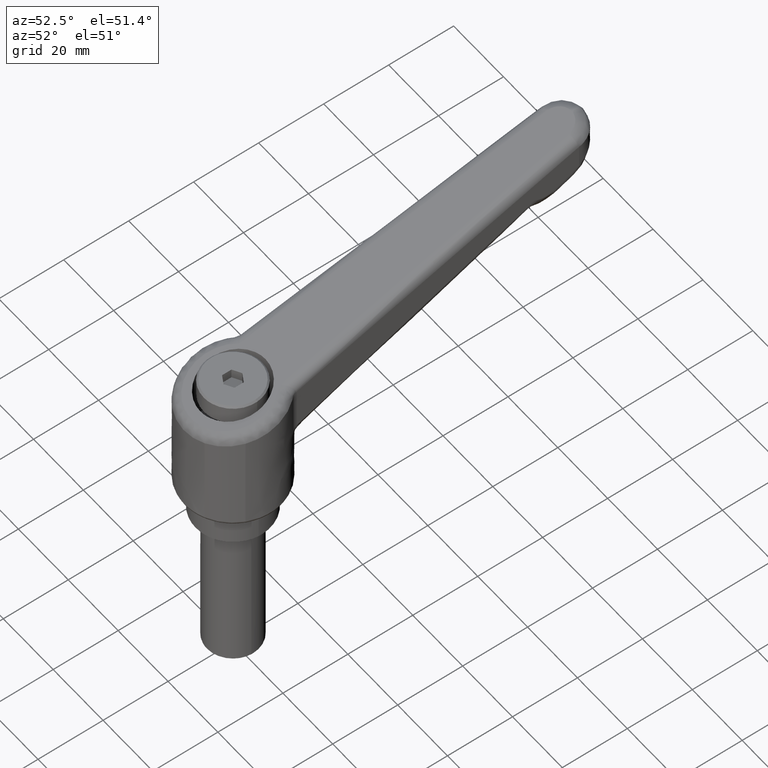
[diagram: clean part render]
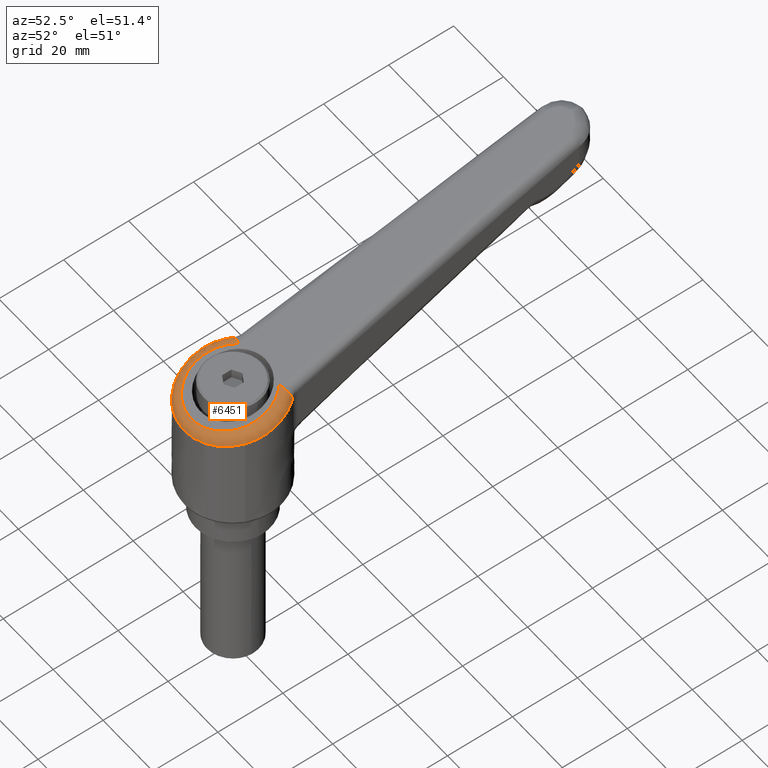
[diagram: same view with one face highlighted and labeled with its STEP entity id]
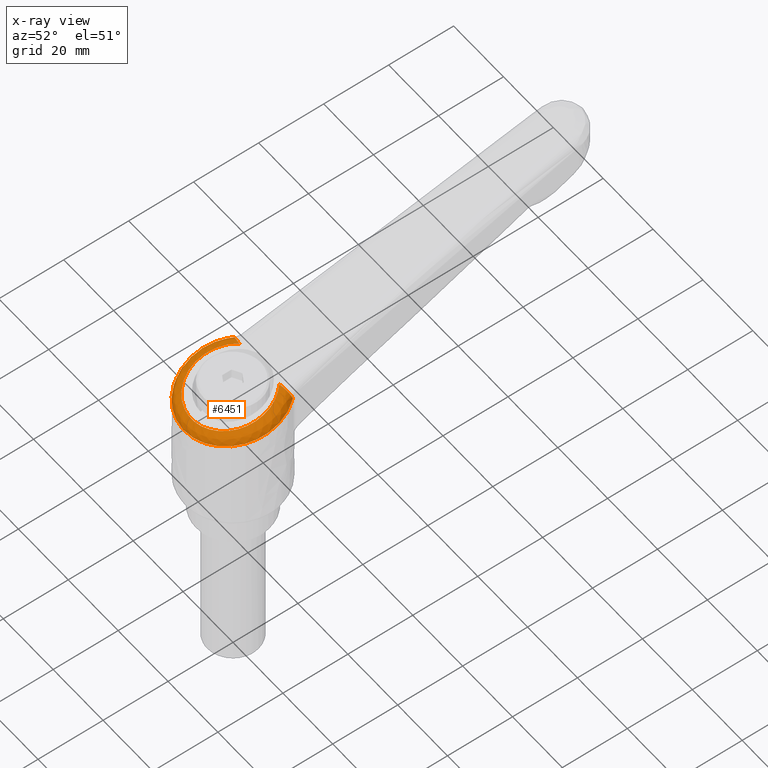
[diagram: x-ray of the same camera — body ghosted, the highlighted face saturated]
A machine part, auxiliary view. The second image highlights one B-rep face of the part: STEP entity #6451.
The next image is the same camera in x-ray: the body ghosted, the highlighted face saturated — about 0% of this face is hidden behind the body in this view.
In plain terms, the highlighted face is a freeform B-spline surface patch.
Its self-contained STEP definition (entity closure, byte-faithful):
#2017=CARTESIAN_POINT('',(-13.591118296123440,-6.346771105100308,41.912158465186323));
#2018=VERTEX_POINT('',#2017);
#2024=CARTESIAN_POINT('',(9.472244752128422,11.630846029235180,46.862331811850687));
#2025=VERTEX_POINT('',#2024);
#2026=CARTESIAN_POINT('',(-13.591118296123438,-6.346771105100308,41.912158465186323));
#2027=CARTESIAN_POINT('',(-17.878908185706003,2.835196582448638,40.991851073208743));
#2028=CARTESIAN_POINT('',(-10.960801264136990,10.240158969460049,42.476708919969923));
#2029=CARTESIAN_POINT('',(-1.393905066633530,20.480316762061573,44.530085811807695));
#2030=CARTESIAN_POINT('',(9.472244752128422,11.630846029235180,46.862331811850687));
#2038=(BOUNDED_CURVE()B_SPLINE_CURVE(2,(#2026,#2027,#2028,#2029,#2030),.UNSPECIFIED.,.F.,.U.)B_SPLINE_CURVE_WITH_KNOTS((3,2,3),(0.406204512863110,0.666666666666667,1.0),.UNSPECIFIED.)CURVE()GEOMETRIC_REPRESENTATION_ITEM()RATIONAL_B_SPLINE_CURVE((0.908002308991056,0.789588303627976,1.0,0.730720063933333,1.0))REPRESENTATION_ITEM(''));
#2039=EDGE_CURVE('',#2018,#2025,#2038,.T.);
#2184=CARTESIAN_POINT('',(9.472244752128422,-11.630846029235180,46.862331811850687));
#2185=VERTEX_POINT('',#2184);
#2191=CARTESIAN_POINT('',(-6.495377530397809,-13.520727448520329,43.435143650820500));
#2192=VERTEX_POINT('',#2191);
#2193=CARTESIAN_POINT('',(9.472244752128422,-11.630846029235180,46.862331811850687));
#2194=CARTESIAN_POINT('',(2.088334876930437,-17.644354313859541,45.277497055466206));
#2195=CARTESIAN_POINT('',(-6.495377530397809,-13.520727448520333,43.435143650820500));
#2203=(BOUNDED_CURVE()B_SPLINE_CURVE(2,(#2193,#2194,#2195),.UNSPECIFIED.,.F.,.U.)B_SPLINE_CURVE_WITH_KNOTS((3,3),(0.0,0.247903999850875),.UNSPECIFIED.)CURVE()GEOMETRIC_REPRESENTATION_ITEM()RATIONAL_B_SPLINE_CURVE((1.0,0.799733280308456,0.897348085708199))REPRESENTATION_ITEM(''));
#2204=EDGE_CURVE('',#2185,#2192,#2203,.T.);
#2310=CARTESIAN_POINT('',(-6.495377530397809,-13.520727448520333,43.435143650820500));
#2311=CARTESIAN_POINT('',(-9.036351409407056,-12.300039986753522,42.889764658598473));
#2312=CARTESIAN_POINT('',(-10.960802006790541,-10.240157344158190,42.476712710107627));
#2313=CARTESIAN_POINT('',(-12.584662193443480,-8.502018980390432,42.128177593079613));
#2314=CARTESIAN_POINT('',(-13.591118296123438,-6.346771105100308,41.912158465186323));
#2322=(BOUNDED_CURVE()B_SPLINE_CURVE(2,(#2310,#2311,#2312,#2313,#2314),.UNSPECIFIED.,.F.,.U.)B_SPLINE_CURVE_WITH_KNOTS((3,2,3),(0.247903999850875,0.333333333333333,0.406204512863110),.UNSPECIFIED.)CURVE()GEOMETRIC_REPRESENTATION_ITEM()RATIONAL_B_SPLINE_CURVE((0.897348085708199,0.930986783624877,1.0,0.941131760305357,0.908002308991056))REPRESENTATION_ITEM(''));
#2323=EDGE_CURVE('',#2192,#2018,#2322,.T.);
#4320=CARTESIAN_POINT('',(9.436880644166740,11.613387995143960,47.329988022554907));
#4321=VERTEX_POINT('',#4320);
#4345=CARTESIAN_POINT('',(9.436880644166740,11.613387995143960,47.329988022554907));
#4346=CARTESIAN_POINT('',(9.477869287583793,11.611592745896440,47.176026505749007));
#4347=CARTESIAN_POINT('',(9.488280105674333,11.617786721847560,47.020050942452023));
#4348=CARTESIAN_POINT('',(9.472244752128411,11.630846029235180,46.862331811850687));
#4349=QUASI_UNIFORM_CURVE('',3,(#4345,#4346,#4347,#4348),.UNSPECIFIED.,.F.,.U.);
#4350=EDGE_CURVE('',#4321,#2025,#4349,.T.);
#4429=CARTESIAN_POINT('',(8.123781733177820,8.047932275665861,50.114911370818703));
#4430=VERTEX_POINT('',#4429);
#4431=CARTESIAN_POINT('',(8.123781733177840,8.047932275665840,50.114911370818703));
#4432=CARTESIAN_POINT('',(8.127179443681980,8.074889399582524,50.115822951999462));
#4433=CARTESIAN_POINT('',(8.130689640095229,8.102222775426549,50.116534091348008));
#4434=CARTESIAN_POINT('',(8.137849442063269,8.156711782452392,50.117518863517788));
#4435=CARTESIAN_POINT('',(8.148805319810325,8.238358149036790,50.118346406060517));
#4436=CARTESIAN_POINT('',(8.160411580459295,8.319741332068540,50.117206883093168));
#4437=CARTESIAN_POINT('',(8.184498469513361,8.482150984741972,50.112246886975548));
#4438=CARTESIAN_POINT('',(8.201721181041277,8.589948978222981,50.105369889761242));
#4439=CARTESIAN_POINT('',(8.238556713171795,8.804552782637749,50.084071991929299));
#4440=CARTESIAN_POINT('',(8.258169135835129,8.911358778087191,50.069652590838700));
#4441=CARTESIAN_POINT('',(8.289453729663768,9.070778507359602,50.041949132632581));
#4442=CARTESIAN_POINT('',(8.300213079055688,9.123879062044047,50.031679577742842));
#4443=CARTESIAN_POINT('',(8.322243563553521,9.229205160248835,50.009159337203762));
#4444=CARTESIAN_POINT('',(8.333517276575572,9.281451094659078,49.996909492519940));
#4445=CARTESIAN_POINT('',(8.391173172846482,9.540569236903584,49.930635029523678));
#4446=CARTESIAN_POINT('',(8.441390429142180,9.741156106270852,49.861654116790483));
#4447=CARTESIAN_POINT('',(8.509444901785409,9.982644546139262,49.753173662371921));
#4448=CARTESIAN_POINT('',(8.523321733749359,10.030476660426450,49.730356799787401));
#4449=CARTESIAN_POINT('',(8.551619562626147,10.125172943637320,49.682386732410322));
#4450=CARTESIAN_POINT('',(8.566077685106643,10.172151366716500,49.657165468876400));
#4451=CARTESIAN_POINT('',(8.609929380877066,10.310437574234671,49.578486281589711));
#4452=CARTESIAN_POINT('',(8.639826035576514,10.399225017716130,49.521990675803700));
#4453=CARTESIAN_POINT('',(8.731438171257564,10.655169044284170,49.340077338958977));
#4454=CARTESIAN_POINT('',(8.795053038069513,10.812037877983020,49.202389437760132));
#4455=CARTESIAN_POINT('',(8.927504518473008,11.094604044242111,48.889577563327613));
#4456=CARTESIAN_POINT('',(8.993865598059353,11.215011490770671,48.720279060754869));
#4457=CARTESIAN_POINT('',(9.093297584029976,11.363380007064370,48.446356508194157));
#4458=CARTESIAN_POINT('',(9.126425283670624,11.407423613229220,48.351693454045950));
#4459=CARTESIAN_POINT('',(9.192607799628750,11.483935818305950,48.155177088219048));
#4460=CARTESIAN_POINT('',(9.225006040887738,11.515629995901270,48.055262423386672));
#4461=CARTESIAN_POINT('',(9.319798295622261,11.591161044223639,47.751676035427728));
#4462=CARTESIAN_POINT('',(9.379966950537682,11.615880740869310,47.543767203021453));
#4463=CARTESIAN_POINT('',(9.436880644166740,11.613387995143960,47.329988022554907));
#4464=B_SPLINE_CURVE_WITH_KNOTS('',3,(#4431,#4432,#4433,#4434,#4435,#4436,#4437,#4438,#4439,#4440,#4441,#4442,#4443,#4444,#4445,#4446,#4447,#4448,#4449,#4450,#4451,#4452,#4453,#4454,#4455,#4456,#4457,#4458,#4459,#4460,#4461,#4462,#4463),.UNSPECIFIED.,.F.,.U.,(4,2,1,2,2,2,2,2,2,2,2,2,2,2,2,2,4),(0.0,0.015625000000000,0.031250000000000,0.062499999999998,0.124999999999996,0.187499999999994,0.218749999999993,0.249999999999992,0.374999999999990,0.406249999999990,0.437499999999990,0.499999999999989,0.624999999999990,0.749999999999991,0.812499999999993,0.874999999999996,1.0),.UNSPECIFIED.);
#4465=EDGE_CURVE('',#4430,#4321,#4464,.T.);
#4854=CARTESIAN_POINT('',(9.436880644166591,-11.613387995144080,47.329988022554907));
#4855=VERTEX_POINT('',#4854);
#4869=CARTESIAN_POINT('',(9.472244752128422,-11.630846029235180,46.862331811850687));
#4870=CARTESIAN_POINT('',(9.488280105674344,-11.617786721847560,47.020050942452031));
#4871=CARTESIAN_POINT('',(9.477869287583765,-11.611592745896440,47.176026505749007));
#4872=CARTESIAN_POINT('',(9.436880644166621,-11.613387995144040,47.329988022554907));
#4873=QUASI_UNIFORM_CURVE('',3,(#4869,#4870,#4871,#4872),.UNSPECIFIED.,.F.,.U.);
#4874=EDGE_CURVE('',#2185,#4855,#4873,.T.);
#4961=CARTESIAN_POINT('',(8.123781733177699,-8.047932275665991,50.114911370818703));
#4962=VERTEX_POINT('',#4961);
#5001=CARTESIAN_POINT('',(9.436880644166591,-11.613387995144080,47.329988022554907));
#5002=CARTESIAN_POINT('',(9.379966950537540,-11.615880740869430,47.543767203021467));
#5003=CARTESIAN_POINT('',(9.319798295622121,-11.591161044223741,47.751676035427707));
#5004=CARTESIAN_POINT('',(9.225006040887610,-11.515629995901360,48.055262423386637));
#5005=CARTESIAN_POINT('',(9.192607799628631,-11.483935818306040,48.155177088219027));
#5006=CARTESIAN_POINT('',(9.126425283670509,-11.407423613229311,48.351693454045929));
#5007=CARTESIAN_POINT('',(9.093297584029870,-11.363380007064460,48.446356508194143));
#5008=CARTESIAN_POINT('',(8.993865598059255,-11.215011490770751,48.720279060754827));
#5009=CARTESIAN_POINT('',(8.927504518472915,-11.094604044242210,48.889577563327563));
#5010=CARTESIAN_POINT('',(8.795053038069426,-10.812037877983110,49.202389437760097));
#5011=CARTESIAN_POINT('',(8.731438171257507,-10.655169044284261,49.340077338958963));
#5012=CARTESIAN_POINT('',(8.639826035576476,-10.399225017716200,49.521990675803671));
#5013=CARTESIAN_POINT('',(8.609929380877023,-10.310437574234751,49.578486281589669));
#5014=CARTESIAN_POINT('',(8.566077685106613,-10.172151366716591,49.657165468876372));
#5015=CARTESIAN_POINT('',(8.551619562626113,-10.125172943637409,49.682386732410272));
#5016=CARTESIAN_POINT('',(8.523321733749327,-10.030476660426540,49.730356799787330));
#5017=CARTESIAN_POINT('',(8.509444901785404,-9.982644546139348,49.753173662371893));
#5018=CARTESIAN_POINT('',(8.441390429142203,-9.741156106270934,49.861654116790447));
#5019=CARTESIAN_POINT('',(8.391173172846486,-9.540569236903668,49.930635029523629));
#5020=CARTESIAN_POINT('',(8.333517276575627,-9.281451094659159,49.996909492519933));
#5021=CARTESIAN_POINT('',(8.322243563553606,-9.229205160248910,50.009159337203727));
#5022=CARTESIAN_POINT('',(8.300213079055789,-9.123879062044113,50.031679577742807));
#5023=CARTESIAN_POINT('',(8.289453729663928,-9.070778507359687,50.041949132632560));
#5024=CARTESIAN_POINT('',(8.258169135835336,-8.911358778087267,50.069652590838707));
#5025=CARTESIAN_POINT('',(8.238556713172006,-8.804552782637821,50.084071991929299));
#5026=CARTESIAN_POINT('',(8.201721181041634,-8.589948978223037,50.105369889761292));
#5027=CARTESIAN_POINT('',(8.184498469513658,-8.482150984742029,50.112246886975591));
#5028=CARTESIAN_POINT('',(8.160411580459925,-8.319741332068547,50.117206883093317));
#5029=CARTESIAN_POINT('',(8.148805319811453,-8.238358149036722,50.118346406060773));
#5030=CARTESIAN_POINT('',(8.137849442065068,-8.156711782452227,50.117518863518228));
#5031=CARTESIAN_POINT('',(8.130689640098971,-8.102222775426100,50.116534091348967));
#5032=CARTESIAN_POINT('',(8.127179443681783,-8.074889399582657,50.115822951999391));
#5033=CARTESIAN_POINT('',(8.123781733177699,-8.047932275665991,50.114911370818703));
#5034=B_SPLINE_CURVE_WITH_KNOTS('',3,(#5001,#5002,#5003,#5004,#5005,#5006,#5007,#5008,#5009,#5010,#5011,#5012,#5013,#5014,#5015,#5016,#5017,#5018,#5019,#5020,#5021,#5022,#5023,#5024,#5025,#5026,#5027,#5028,#5029,#5030,#5031,#5032,#5033),.UNSPECIFIED.,.F.,.U.,(4,2,2,2,2,2,2,2,2,2,2,2,2,2,1,2,4),(0.0,0.125000000000000,0.187500000000002,0.250000000000003,0.375000000000003,0.500000000000003,0.562500000000003,0.593750000000002,0.625000000000002,0.750000000000002,0.781250000000002,0.812500000000002,0.875000000000001,0.937500000000000,0.968750000000000,0.984375000000000,1.0),.UNSPECIFIED.);
#5035=EDGE_CURVE('',#4855,#4962,#5034,.T.);
#6245=CARTESIAN_POINT('',(11.414863904592726,9.731438628245606,47.255948690715620));
#6246=CARTESIAN_POINT('',(10.427609756492478,10.889483186961465,47.044169186384373));
#6247=CARTESIAN_POINT('',(9.262984892409270,11.895939443270324,46.794348224451682));
#6248=CARTESIAN_POINT('',(6.684976309184521,13.513968559823729,46.241375659468801));
#6249=CARTESIAN_POINT('',(5.272007374577126,14.125253575554208,45.938316672106971));
#6250=CARTESIAN_POINT('',(2.327215917757211,14.896339090624812,45.306744874867626));
#6251=CARTESIAN_POINT('',(0.795804947314095,15.056030005198016,44.978321644642207));
#6252=CARTESIAN_POINT('',(-2.245048517846108,14.908960844081630,44.326226374248307));
#6253=CARTESIAN_POINT('',(-3.754063518636296,14.602216744953335,44.002644609060553));
#6254=CARTESIAN_POINT('',(-6.611249455449562,13.550244397908745,43.390005546108121));
#6255=CARTESIAN_POINT('',(-7.959014057117970,12.805158950694201,43.101031938051804));
#6256=CARTESIAN_POINT('',(-10.369575331005464,10.944858322969958,42.584208573280002));
#6257=CARTESIAN_POINT('',(-11.432024756964683,9.829902912972214,42.356428984808367));
#6258=CARTESIAN_POINT('',(-13.174035582250069,7.332324324680911,41.982970199035499));
#6259=CARTESIAN_POINT('',(-13.853343280508319,5.950055820370716,41.837341589341548));
#6260=CARTESIAN_POINT('',(-14.766392454538710,3.044986825501384,41.641607734398598));
#6261=CARTESIAN_POINT('',(-15.000000000000002,1.522602946863244,41.591528986046889));
#6262=CARTESIAN_POINT('',(-15.000000000000012,-1.522602946863110,41.591528986046889));
#6263=CARTESIAN_POINT('',(-14.766392454539135,-3.044986825499932,41.641607734394391));
#6264=CARTESIAN_POINT('',(-13.853343280507936,-5.950055820372059,41.837341589345769));
#6265=CARTESIAN_POINT('',(-13.174035582249395,-7.332324324681817,41.982970199039755));
#6266=CARTESIAN_POINT('',(-11.432024756965363,-9.829902912971267,42.356428984804090));
#6267=CARTESIAN_POINT('',(-10.369575331004178,-10.944858322970980,42.584208573279952));
#6268=CARTESIAN_POINT('',(-7.959014057119374,-12.805158950693098,43.101031938051811));
#6269=CARTESIAN_POINT('',(-6.611249455450050,-13.550244397908596,43.390005546112484));
#6270=CARTESIAN_POINT('',(-3.754063518636042,-14.602216744953411,44.002644609056190));
#6271=CARTESIAN_POINT('',(-2.245048517845986,-14.908960844081571,44.326226374243895));
#6272=CARTESIAN_POINT('',(0.795804947313859,-15.056030005198043,44.978321644646556));
#6273=CARTESIAN_POINT('',(2.327215917758047,-14.896339090624640,45.306744874866752));
#6274=CARTESIAN_POINT('',(5.272007374576231,-14.125253575554398,45.938316672107867));
#6275=CARTESIAN_POINT('',(6.684976309184844,-13.513968559823480,46.241375659464445));
#6276=CARTESIAN_POINT('',(9.262984892408660,-11.895939443270755,46.794348224455973));
#6277=CARTESIAN_POINT('',(10.427609756492716,-10.889483186961213,47.044169186381538));
#6278=CARTESIAN_POINT('',(11.414863904592647,-9.731438628245703,47.255948690715599));
#6279=CARTESIAN_POINT('',(11.413579096296830,9.732944886358853,47.267319423149928));
#6280=CARTESIAN_POINT('',(10.426028930885208,10.891023503733489,47.055417371563266));
#6281=CARTESIAN_POINT('',(9.261110689321773,11.897409779592017,46.805460329482550));
#6282=CARTESIAN_POINT('',(6.682618179798396,13.515144791522202,46.252207021613870));
#6283=CARTESIAN_POINT('',(5.269462527823932,14.126202147986600,45.949002398523113));
#6284=CARTESIAN_POINT('',(2.324461346276189,14.896768188478495,45.317146389214379));
#6285=CARTESIAN_POINT('',(0.793031451377003,15.056167206694610,44.988584833443745));
#6286=CARTESIAN_POINT('',(-2.247698732386364,14.908552122418534,44.336229454581016));
#6287=CARTESIAN_POINT('',(-3.756568616647575,14.601556566380143,44.012527269114493));
#6288=CARTESIAN_POINT('',(-6.613357412993950,13.549198305751109,43.399669296150364));
#6289=CARTESIAN_POINT('',(-7.960869630497150,12.803982018615576,43.110599037063032));
#6290=CARTESIAN_POINT('',(-10.370902963365955,10.943572624470125,42.593607207589187));
#6291=CARTESIAN_POINT('',(-11.433078776487704,9.828641975297970,42.365757570969052));
#6292=CARTESIAN_POINT('',(-13.174605897342484,7.331252290143343,41.992185126862822));
#6293=CARTESIAN_POINT('',(-13.853706308640239,5.949148523631989,41.846514239961259));
#6294=CARTESIAN_POINT('',(-14.766469347696818,3.044492342712447,41.650723282075965));
#6295=CARTESIAN_POINT('',(-14.999999999999998,1.522355163336954,41.600630414637720));
#6296=CARTESIAN_POINT('',(-15.000000000000009,-1.522355163336821,41.600630414637720));
#6297=CARTESIAN_POINT('',(-14.766469347697265,-3.044492342710999,41.650723282071766));
#6298=CARTESIAN_POINT('',(-13.853706308639845,-5.949148523633332,41.846514239965515));
#6299=CARTESIAN_POINT('',(-13.174605897341833,-7.331252290144257,41.992185126867099));
#6300=CARTESIAN_POINT('',(-11.433078776488383,-9.828641975297025,42.365757570964796));
#6301=CARTESIAN_POINT('',(-10.370902963364658,-10.943572624471145,42.593607207589180));
#6302=CARTESIAN_POINT('',(-7.960869630498554,-12.803982018614484,43.110599037063018));
#6303=CARTESIAN_POINT('',(-6.613357412994425,-13.549198305750938,43.399669296154713));
#6304=CARTESIAN_POINT('',(-3.756568616647328,-14.601556566380227,44.012527269110088));
#6305=CARTESIAN_POINT('',(-2.247698732386248,-14.908552122418516,44.336229454576660));
#6306=CARTESIAN_POINT('',(0.793031451376769,-15.056167206694624,44.988584833448101));
#6307=CARTESIAN_POINT('',(2.324461346277022,-14.896768188478305,45.317146389213526));
#6308=CARTESIAN_POINT('',(5.269462527823037,-14.126202147986801,45.949002398523980));
#6309=CARTESIAN_POINT('',(6.682618179798722,-13.515144791521950,46.252207021609479));
#6310=CARTESIAN_POINT('',(9.261110689321164,-11.897409779592445,46.805460329486856));
#6311=CARTESIAN_POINT('',(10.426028930885435,-10.891023503733228,47.055417371560452));
#6312=CARTESIAN_POINT('',(11.413579096296750,-9.732944886358951,47.267319423149907));
#6313=CARTESIAN_POINT('',(11.004493327140613,10.212540761299339,50.887785479133285));
#6314=CARTESIAN_POINT('',(9.928015656737738,11.376275131323885,50.598974297417335));
#6315=CARTESIAN_POINT('',(8.677855654932138,12.354980822770566,50.263565400995603));
#6316=CARTESIAN_POINT('',(5.967601196600405,13.871794280528345,49.536423710662490));
#6317=CARTESIAN_POINT('',(4.508343574068547,14.409903497153195,49.144915433269915));
#6318=CARTESIAN_POINT('',(1.522893323602615,15.021633751229601,48.343940700127042));
#6319=CARTESIAN_POINT('',(-0.003073946385709,15.095549579881297,47.934534706277653));
#6320=CARTESIAN_POINT('',(-2.988803210185126,14.794257430390710,47.133485115873029));
#6321=CARTESIAN_POINT('',(-4.448416708818369,14.419231050851623,46.741881359492780));
#6322=CARTESIAN_POINT('',(-7.182395323382496,13.266808322592233,46.008374649444740));
#6323=CARTESIAN_POINT('',(-8.456598769072311,12.489556552048342,45.666515070734164));
#6324=CARTESIAN_POINT('',(-10.719225635807055,10.606251879105631,45.059468629244144));
#6325=CARTESIAN_POINT('',(-11.707478362869068,9.500374074460014,44.794327562431107));
#6326=CARTESIAN_POINT('',(-13.321235462308829,7.055629288119091,44.361368191590572));
#6327=CARTESIAN_POINT('',(-13.946597002245650,5.716991795387240,44.193588208490759));
#6328=CARTESIAN_POINT('',(-14.786019651599632,2.918768688801984,43.968377176274359));
#6329=CARTESIAN_POINT('',(-15.000000000000004,1.459456955956999,43.910967794743215));
#6330=CARTESIAN_POINT('',(-15.000000000000004,-1.459456955956872,43.910967794743215));
#6331=CARTESIAN_POINT('',(-14.786019651602830,-2.918768688800870,43.968377176265882));
#6332=CARTESIAN_POINT('',(-13.946597002242491,-5.716991795388246,44.193588208499236));
#6333=CARTESIAN_POINT('',(-13.321235462310964,-7.055629288121210,44.361368191594856));
#6334=CARTESIAN_POINT('',(-11.707478362866938,-9.500374074457861,44.794327562426830));
#6335=CARTESIAN_POINT('',(-10.719225635803864,-10.606251879102345,45.059468629244137));
#6336=CARTESIAN_POINT('',(-8.456598769075601,-12.489556552051532,45.666515070734150));
#6337=CARTESIAN_POINT('',(-7.182395323379886,-13.266808322587838,46.008374649444711));
#6338=CARTESIAN_POINT('',(-4.448416708821204,-14.419231050855929,46.741881359492737));
#6339=CARTESIAN_POINT('',(-2.988803210186279,-14.794257430396170,47.133485115868631));
#6340=CARTESIAN_POINT('',(-0.003073946384671,-15.095549579875826,47.934534706282001));
#6341=CARTESIAN_POINT('',(1.522893323602654,-15.021633751222964,48.343940700122715));
#6342=CARTESIAN_POINT('',(4.508343574068447,-14.409903497159842,49.144915433274235));
#6343=CARTESIAN_POINT('',(5.967601196602968,-13.871794280532756,49.536423710662440));
#6344=CARTESIAN_POINT('',(8.677855654929283,-12.354980822766315,50.263565400995553));
#6345=CARTESIAN_POINT('',(9.928015656733779,-11.376275131323077,50.598974297423176));
#6346=CARTESIAN_POINT('',(11.004493327140517,-10.212540761299431,50.887785479133242));
#6347=CARTESIAN_POINT('',(8.344035144914633,7.779874885058225,50.174003769917562));
#6348=CARTESIAN_POINT('',(7.554589292598555,8.705517732973172,49.962201151269419));
#6349=CARTESIAN_POINT('',(6.623353703011886,9.509907259263892,49.712357370503234));
#6350=CARTESIAN_POINT('',(4.562151595718488,10.802875337858881,49.159351736732361));
#6351=CARTESIAN_POINT('',(3.432522316495448,11.291231297439246,48.856280362376353));
#6352=CARTESIAN_POINT('',(1.078436204776678,11.906991494040627,48.224696066224112));
#6353=CARTESIAN_POINT('',(-0.145685947390654,12.034316293848848,47.896272936742101));
#6354=CARTESIAN_POINT('',(-2.576187088664581,11.916162999644172,47.244187040237733));
#6355=CARTESIAN_POINT('',(-3.782224607066307,11.670707801748922,46.920615887338485));
#6356=CARTESIAN_POINT('',(-6.065602940112403,10.829441487443525,46.308001977360036));
#6357=CARTESIAN_POINT('',(-7.142625022705875,10.233752729355187,46.019044733787247));
#6358=CARTESIAN_POINT('',(-9.068849607479699,8.746702439833623,45.502252594133054));
#6359=CARTESIAN_POINT('',(-9.917784030083150,7.855551841926250,45.274489621865207));
#6360=CARTESIAN_POINT('',(-11.309664245274710,5.859466291419900,44.901058216079512));
#6361=CARTESIAN_POINT('',(-11.852416539842160,4.754812200025277,44.755441696682446));
#6362=CARTESIAN_POINT('',(-12.581910915985757,2.433278474871032,44.559723625958448));
#6363=CARTESIAN_POINT('',(-12.768551614675829,1.216724513507639,44.509649274927469));
#6364=CARTESIAN_POINT('',(-12.768551614675829,-1.216724513507532,44.509649274927469));
#6365=CARTESIAN_POINT('',(-12.581910915989802,-2.433278474870728,44.559723625957417));
#6366=CARTESIAN_POINT('',(-11.852416539838147,-4.754812200025498,44.755441696683512));
#6367=CARTESIAN_POINT('',(-11.309664245274638,-5.859466291420950,44.901058216079498));
#6368=CARTESIAN_POINT('',(-9.917784030083242,-7.855551841925175,45.274489621865229));
#6369=CARTESIAN_POINT('',(-9.068849607478732,-8.746702439833593,45.502252594133274));
#6370=CARTESIAN_POINT('',(-7.142625022706925,-10.233752729355148,46.019044733787005));
#6371=CARTESIAN_POINT('',(-6.065602940111409,-10.829441487443503,46.308001977360306));
#6372=CARTESIAN_POINT('',(-3.782224607067486,-11.670707801748888,46.920615887338208));
#6373=CARTESIAN_POINT('',(-2.576187088665725,-11.916162999645247,47.244187040237414));
#6374=CARTESIAN_POINT('',(-0.145685947389605,-12.034316293847754,47.896272936742342));
#6375=CARTESIAN_POINT('',(1.078436204775731,-11.906991494039451,48.224696066223885));
#6376=CARTESIAN_POINT('',(3.432522316496347,-11.291231297440440,48.856280362376580));
#6377=CARTESIAN_POINT('',(4.562151595718296,-10.802875337858936,49.159351736732297));
#6378=CARTESIAN_POINT('',(6.623353703011854,-9.509907259263972,49.712357370503220));
#6379=CARTESIAN_POINT('',(7.554589292597443,-8.705517732972202,49.962201151269099));
#6380=CARTESIAN_POINT('',(8.344035144914566,-7.779874885058304,50.174003769917533));
#6381=CARTESIAN_POINT('',(8.335655368544041,7.772212597350241,50.171755536458917));
#6382=CARTESIAN_POINT('',(7.547033658427382,8.697015566583353,49.960174029208680));
#6383=CARTESIAN_POINT('',(6.616732804578520,9.500738641496543,49.710581031287710));
#6384=CARTESIAN_POINT('',(4.557503029977611,10.792724798522949,49.158104560128663));
#6385=CARTESIAN_POINT('',(3.428914854523959,11.280773713260819,48.855312506392295));
#6386=CARTESIAN_POINT('',(1.076904425088637,11.896257172228713,48.224285100800515));
#6387=CARTESIAN_POINT('',(-0.146184218761300,12.023620665889421,47.896139254133203));
#6388=CARTESIAN_POINT('',(-2.574707295846950,11.905841096924059,47.244584057959564));
#6389=CARTESIAN_POINT('',(-3.779805435360725,11.660726972407231,46.921264933629274));
#6390=CARTESIAN_POINT('',(-6.061453910325238,10.820386350828361,46.309115132076343));
#6391=CARTESIAN_POINT('',(-7.137692445152988,10.225284578960016,46.020368108708219));
#6392=CARTESIAN_POINT('',(-9.062541011527616,8.739594274261696,45.503945144849098));
#6393=CARTESIAN_POINT('',(-9.910889608115673,7.849215509333118,45.276339345468791));
#6394=CARTESIAN_POINT('',(-11.301817624787706,5.854800368087825,44.903163407666483));
#6395=CARTESIAN_POINT('',(-11.844208562629596,4.751041012042717,44.757643837668233));
#6396=CARTESIAN_POINT('',(-12.573216884119510,2.431363475251247,44.562056171896195));
#6397=CARTESIAN_POINT('',(-12.759735544283162,1.215765519200044,44.512014562920129));
#6398=CARTESIAN_POINT('',(-12.759735544283162,-1.215765519199937,44.512014562920129));
#6399=CARTESIAN_POINT('',(-12.573216884123548,-2.431363475250945,44.562056171895158));
#6400=CARTESIAN_POINT('',(-11.844208562625576,-4.751041012042933,44.757643837669256));
#6401=CARTESIAN_POINT('',(-11.301817624787633,-5.854800368088878,44.903163407666476));
#6402=CARTESIAN_POINT('',(-9.910889608115767,-7.849215509332041,45.276339345468806));
#6403=CARTESIAN_POINT('',(-9.062541011526665,-8.739594274261686,45.503945144849375));
#6404=CARTESIAN_POINT('',(-7.137692445154023,-10.225284578959956,46.020368108707906));
#6405=CARTESIAN_POINT('',(-6.061453910324241,-10.820386350828345,46.309115132076592));
#6406=CARTESIAN_POINT('',(-3.779805435361894,-11.660726972407183,46.921264933628933));
#6407=CARTESIAN_POINT('',(-2.574707295848095,-11.905841096925137,47.244584057959287));
#6408=CARTESIAN_POINT('',(-0.146184218760251,-12.023620665888345,47.896139254133452));
#6409=CARTESIAN_POINT('',(1.076904425087685,-11.896257172227532,48.224285100800273));
#6410=CARTESIAN_POINT('',(3.428914854524866,-11.280773713262013,48.855312506392544));
#6411=CARTESIAN_POINT('',(4.557503029977418,-10.792724798523016,49.158104560128635));
#6412=CARTESIAN_POINT('',(6.616732804578491,-9.500738641496628,49.710581031287703));
#6413=CARTESIAN_POINT('',(7.547033658426283,-8.697015566582389,49.960174029208346));
#6414=CARTESIAN_POINT('',(8.335655368543973,-7.772212597350320,50.171755536458896));
#6422=(BOUNDED_SURFACE()B_SPLINE_SURFACE(3,2,((#6245,#6279,#6313,#6347,#6381),(#6246,#6280,#6314,#6348,#6382),(#6247,#6281,#6315,#6349,#6383),(#6248,#6282,#6316,#6350,#6384),(#6249,#6283,#6317,#6351,#6385),(#6250,#6284,#6318,#6352,#6386),(#6251,#6285,#6319,#6353,#6387),(#6252,#6286,#6320,#6354,#6388),(#6253,#6287,#6321,#6355,#6389),(#6254,#6288,#6322,#6356,#6390),(#6255,#6289,#6323,#6357,#6391),(#6256,#6290,#6324,#6358,#6392),(#6257,#6291,#6325,#6359,#6393),(#6258,#6292,#6326,#6360,#6394),(#6259,#6293,#6327,#6361,#6395),(#6260,#6294,#6328,#6362,#6396),(#6261,#6295,#6329,#6363,#6397),(#6262,#6296,#6330,#6364,#6398),(#6263,#6297,#6331,#6365,#6399),(#6264,#6298,#6332,#6366,#6400),(#6265,#6299,#6333,#6367,#6401),(#6266,#6300,#6334,#6368,#6402),(#6267,#6301,#6335,#6369,#6403),(#6268,#6302,#6336,#6370,#6404),(#6269,#6303,#6337,#6371,#6405),(#6270,#6304,#6338,#6372,#6406),(#6271,#6305,#6339,#6373,#6407),(#6272,#6306,#6340,#6374,#6408),(#6273,#6307,#6341,#6375,#6409),(#6274,#6308,#6342,#6376,#6410),(#6275,#6309,#6343,#6377,#6411),(#6276,#6310,#6344,#6378,#6412),(#6277,#6311,#6345,#6379,#6413),(#6278,#6312,#6346,#6380,#6414)),.UNSPECIFIED.,.F.,.F.,.U.)B_SPLINE_SURFACE_WITH_KNOTS((4,2,2,2,2,2,2,2,2,2,2,2,2,2,2,2,4),(3,1,1,3),(0.0,4.669979155594015,9.339958311188024,14.009937466782031,18.679916622376041,23.349895777970062,28.019874933564068,32.689854089158082,37.359833244752089,42.029812400346103,46.699791555940102,51.369770711534109,56.039749867128130,60.709729022722158,65.379708178316164,70.049687333910171,74.719666489504192),(0.0,0.028416865803068,5.711707396055011,5.740207019251294),.UNSPECIFIED.)GEOMETRIC_REPRESENTATION_ITEM()RATIONAL_B_SPLINE_SURFACE(((1.003664242666921,1.001832121333460,0.633581060737394,1.001837456953042,1.003674913906083),(1.003596924935597,1.001798462467799,0.640312735996735,1.001803700063903,1.003607400127806),(1.003518583669058,1.001759291834529,0.648146748750543,1.001764415355439,1.003528830710878),(1.003348955232551,1.001674477616275,0.665109345779130,1.001679354135856,1.003358708271713),(1.003257696135900,1.001628848067950,0.674235122762919,1.001633591702275,1.003267183404551),(1.003071606019247,1.001535803009624,0.692843863872444,1.001540275672248,1.003080551344495),(1.002976801362009,1.001488400681005,0.702324191760055,1.001492735295570,1.002985470591141),(1.002792247071813,1.001396123535907,0.720779352456810,1.001400189415136,1.002800378830273),(1.002702509928100,1.001351254964050,0.729752936359674,1.001355190174188,1.002710380348375),(1.002535375005996,1.001267687502998,0.746466185573191,1.001271379342692,1.002542758685384),(1.002457981713696,1.001228990856848,0.754205402281352,1.001232570001723,1.002465140003445),(1.002321243661619,1.001160621830810,0.767879008686020,1.001164001867084,1.002328003734169),(1.002261899730827,1.001130949865414,0.773813315485325,1.001134243489115,1.002268486978229),(1.002165329754104,1.001082664877052,0.783470172754872,1.001085817882157,1.002171635764315),(1.002128103338506,1.001064051669253,0.787192760191366,1.001067150467798,1.002134300935595),(1.002078199197592,1.001039099598796,0.792183101727278,1.001042125730344,1.002084251460687),(1.002065521068752,1.001032760534376,0.793450896178553,1.001035768204899,1.002071536409799),(1.002065521068752,1.001032760534376,0.793450896178553,1.001035768204899,1.002071536409799),(1.002078199197593,1.001039099598796,0.792183101727211,1.001042125730344,1.002084251460688),(1.002128103338505,1.001064051669252,0.787192760191434,1.001067150467797,1.002134300935594),(1.002165329754106,1.001082664877053,0.783470172754736,1.001085817882158,1.002171635764316),(1.002261899730826,1.001130949865413,0.773813315485461,1.001134243489114,1.002268486978228),(1.002321243661616,1.001160621830808,0.767879008686367,1.001164001867083,1.002328003734165),(1.002457981713699,1.001228990856850,0.754205402281007,1.001232570001724,1.002465140003449),(1.002535375005990,1.001267687502995,0.746466185573749,1.001271379342689,1.002542758685379),(1.002702509928105,1.001351254964053,0.729752936359116,1.001355190174190,1.002710380348381),(1.002792247071819,1.001396123535909,0.720779352456320,1.001400189415139,1.002800378830278),(1.002976801362004,1.001488400681002,0.702324191760545,1.001492735295568,1.002985470591136),(1.003071606019244,1.001535803009622,0.692843863872761,1.001540275672246,1.003080551344492),(1.003257696135903,1.001628848067952,0.674235122762603,1.001633591702277,1.003267183404554),(1.003348955232556,1.001674477616278,0.665109345778577,1.001679354135859,1.003358708271718),(1.003518583669053,1.001759291834526,0.648146748751098,1.001764415355436,1.003528830710872),(1.003596924935601,1.001798462467801,0.640312735996317,1.001803700063905,1.003607400127810),(1.003664242666921,1.001832121333460,0.633581060737395,1.001837456953042,1.003674913906083)))REPRESENTATION_ITEM('')SURFACE());
#6423=ORIENTED_EDGE('',*,*,#4465,.T.);
#6424=ORIENTED_EDGE('',*,*,#4350,.T.);
#6425=ORIENTED_EDGE('',*,*,#2039,.F.);
#6426=ORIENTED_EDGE('',*,*,#2323,.F.);
#6427=ORIENTED_EDGE('',*,*,#2204,.F.);
#6428=ORIENTED_EDGE('',*,*,#4874,.T.);
#6429=ORIENTED_EDGE('',*,*,#5035,.T.);
#6430=CARTESIAN_POINT('',(8.123781733177834,8.047932275665847,50.114911370818660));
#6431=CARTESIAN_POINT('',(2.598695241357906,14.158784061128220,48.632570582287229));
#6432=CARTESIAN_POINT('',(-5.089345353260654,11.198526960557951,46.569924834720908));
#6433=CARTESIAN_POINT('',(-12.777385947879289,8.238269859987652,44.507279087154565));
#6434=CARTESIAN_POINT('',(-12.777385947879290,9.886232E-014,44.507279087154572));
#6435=CARTESIAN_POINT('',(-12.777385947879289,-8.238269859987508,44.507279087154565));
#6436=CARTESIAN_POINT('',(-5.089345353260838,-11.198526960557880,46.569924834720858));
#6437=CARTESIAN_POINT('',(2.598695241357674,-14.158784061128268,48.632570582287173));
#6438=CARTESIAN_POINT('',(8.123781733177703,-8.047932275665994,50.114911370818632));
#6446=(BOUNDED_CURVE()B_SPLINE_CURVE(2,(#6430,#6431,#6432,#6433,#6434,#6435,#6436,#6437,#6438),.UNSPECIFIED.,.F.,.U.)B_SPLINE_CURVE_WITH_KNOTS((3,2,2,2,3),(0.0,0.250000000000000,0.500000000000000,0.750000000000000,1.0),.UNSPECIFIED.)CURVE()GEOMETRIC_REPRESENTATION_ITEM()RATIONAL_B_SPLINE_CURVE((1.0,0.824417961488121,1.0,0.824417961488121,1.0,0.824417961488121,1.0,0.824417961488121,1.0))REPRESENTATION_ITEM(''));
#6447=EDGE_CURVE('',#4430,#4962,#6446,.T.);
#6448=ORIENTED_EDGE('',*,*,#6447,.F.);
#6449=EDGE_LOOP('',(#6423,#6424,#6425,#6426,#6427,#6428,#6429,#6448));
#6450=FACE_OUTER_BOUND('',#6449,.T.);
#6451=ADVANCED_FACE('',(#6450),#6422,.T.);